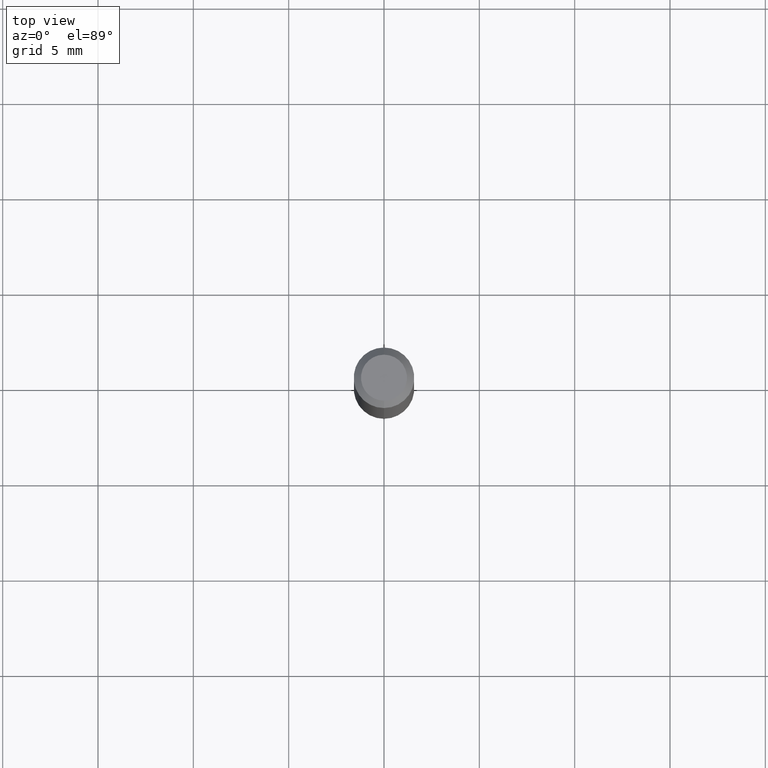
[diagram: clean part render]
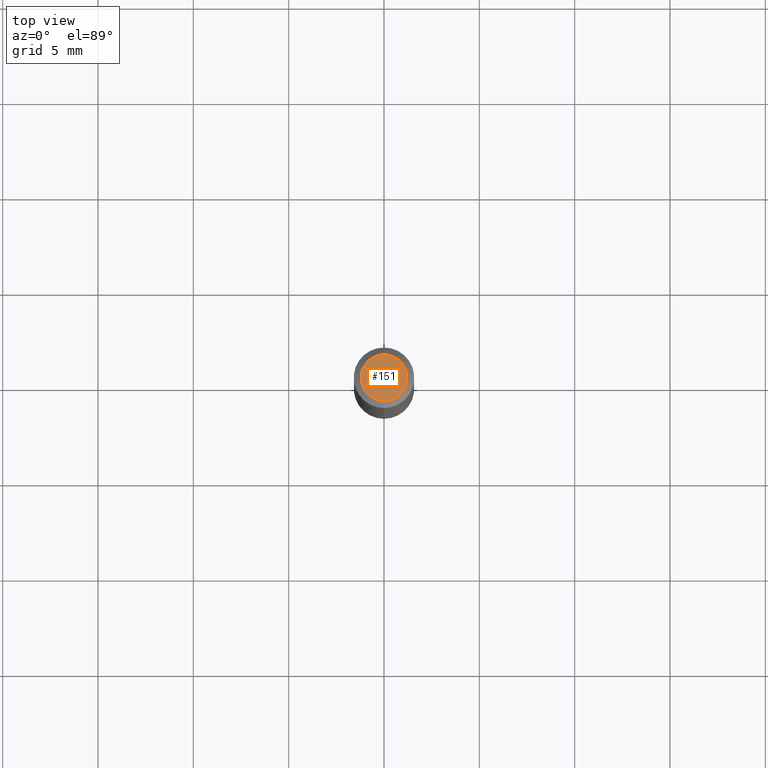
[diagram: same view with one face highlighted and labeled with its STEP entity id]
A machine part, top view. The second image highlights one B-rep face of the part: STEP entity #151.
In plain terms, the highlighted planar face has unit normal (0, -0, -1).
Its self-contained STEP definition (entity closure, byte-faithful):
#49 = FACE_OUTER_BOUND ( 'NONE', #351, .T. ) ;
#54 = CARTESIAN_POINT ( 'NONE',  ( 2.166637767844679666E-46, -3.093402699027057757E-32, -8.859831379722413667E-18 ) ) ;
#56 = EDGE_CURVE ( 'NONE', #480, #454, #317, .T. ) ;
#70 = CARTESIAN_POINT ( 'NONE',  ( 2.166637767844679666E-46, -3.093402699027057757E-32, -8.859831379722413667E-18 ) ) ;
#106 = AXIS2_PLACEMENT_3D ( 'NONE', #70, #468, #383 ) ;
#151 = ADVANCED_FACE ( 'NONE', ( #49 ), #240, .F. ) ;
#163 = DIRECTION ( 'NONE',  ( 6.982962677686265922E-15, 1.000000000000000000, -3.491491616992802242E-15 ) ) ;
#179 = CIRCLE ( 'NONE', #224, 0.04749999999999999362 ) ;
#215 = DIRECTION ( 'NONE',  ( -2.445461628991591881E-29, 3.491491616992802242E-15, 1.000000000000000000 ) ) ;
#224 = AXIS2_PLACEMENT_3D ( 'NONE', #54, #215, #332 ) ;
#240 = PLANE ( 'NONE',  #375 ) ;
#286 = CARTESIAN_POINT ( 'NONE',  ( 3.316907271900976096E-16, 0.04749999999999999362, -1.702757674970192899E-16 ) ) ;
#317 = CIRCLE ( 'NONE', #106, 0.04749999999999999362 ) ;
#330 = EDGE_CURVE ( 'NONE', #454, #480, #179, .T. ) ;
#332 = DIRECTION ( 'NONE',  ( -6.982962677686266711E-15, -1.000000000000000000, 3.491491616992802242E-15 ) ) ;
#339 = ORIENTED_EDGE ( 'NONE', *, *, #330, .T. ) ;
#350 = CARTESIAN_POINT ( 'NONE',  ( 3.840629472727447874E-16, 0.04749999999999999362, -1.747056831868805136E-16 ) ) ;
#351 = EDGE_LOOP ( 'NONE', ( #339, #368 ) ) ;
#368 = ORIENTED_EDGE ( 'NONE', *, *, #56, .T. ) ;
#375 = AXIS2_PLACEMENT_3D ( 'NONE', #286, #481, #163 ) ;
#383 = DIRECTION ( 'NONE',  ( -6.982962677686266711E-15, -1.000000000000000000, 3.491491616992802242E-15 ) ) ;
#454 = VERTEX_POINT ( 'NONE', #350 ) ;
#468 = DIRECTION ( 'NONE',  ( -2.445461628991591881E-29, 3.491491616992802242E-15, 1.000000000000000000 ) ) ;
#480 = VERTEX_POINT ( 'NONE', #510 ) ;
#481 = DIRECTION ( 'NONE',  ( 2.445461628991591601E-29, -3.491491616992802242E-15, -1.000000000000000000 ) ) ;
#510 = CARTESIAN_POINT ( 'NONE',  ( -3.773273898774340269E-16, -0.04749999999999999362, 1.569860204274356925E-16 ) ) ;